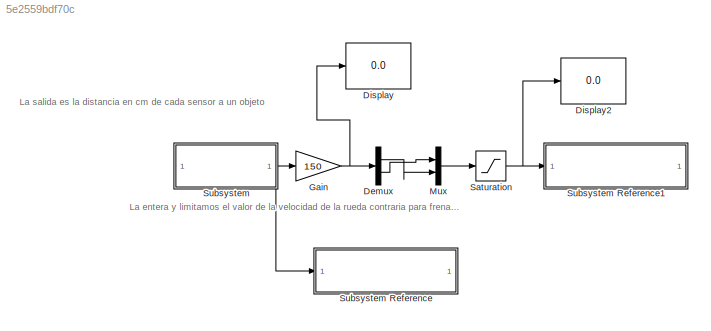
MODEL slx_5e2559bdf70c
KIND model
CONFIG AbsTol = auto
CONFIG EnableMultiTasking = on
CONFIG FixedStep = auto
CONFIG MaxStep = auto
CONFIG MinStep = auto
CONFIG RelTol = 1e-3
CONFIG SampleTimeConstraint = Unconstrained
CONFIG SolverName = FixedStepAuto
CONFIG StartTime = 0.0
CONFIG StopTime = inf
BLOCK [Demux] Demux
  Outputs = 2
BLOCK [Display] Display
  Decimation = 1
BLOCK [Display] Display2
  Decimation = 1
BLOCK [Gain] Gain
  Gain = 150
  OutDataTypeStr = int16
BLOCK [Mux] Mux
  DisplayOption = bar
  Inputs = 2
BLOCK [Saturate] Saturation
  LowerLimit = 0
  UpperLimit = 100
BLOCK [SubSystem] Subsystem
  ReferencedSubsystem = Sonars
BLOCK [SubSystem] Subsystem Reference
  ReferencedSubsystem = Senalizacion
BLOCK [SubSystem] Subsystem Reference1
  ReferencedSubsystem = MotorsG31
ANNOTATION (root): La entera y limitamos el valor de la velocidad de la rueda contraria para frenarla y hacer que gire al contrario
ANNOTATION (root): La salida es la distancia en cm de cada sensor a un objeto
LINE Demux:1 -> Mux:2
LINE Demux:2 -> Mux:1
NET Gain:1 -> Demux:1, Display:1
LINE Mux:1 -> Saturation:1
NET Saturation:1 -> Display2:1, Subsystem Reference1:1
NET Subsystem:1 -> Gain:1, Subsystem Reference:1
note: NET lines group one-source signal fan-out (src -> all destinations, sorted); 1:1 wires keep LINE
